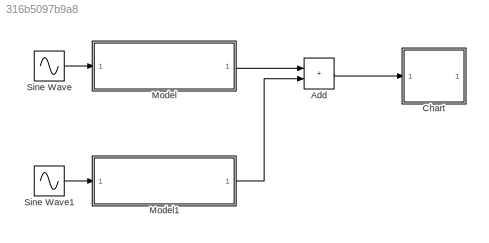
MODEL slx_316b5097b9a8
KIND model
CONFIG AbsTol = auto
CONFIG EnableMultiTasking = off
CONFIG FixedStep = auto
CONFIG MaxStep = auto
CONFIG MinStep = auto
CONFIG RelTol = 1e-3
CONFIG SampleTimeConstraint = Unconstrained
CONFIG SolverName = VariableStepAuto
CONFIG StartTime = 0.0
CONFIG StopTime = 10.0
BLOCK [Sum] Add
  IconShape = rectangular
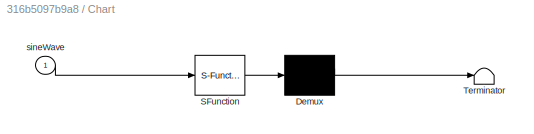
BLOCK [SubSystem] Chart
  ErrorFcn = Stateflow.Translate.translate
  PermitHierarchicalResolution = ExplicitOnly
  SFBlockType = Chart
  TreatAsAtomicUnit = on
BLOCK [Demux] Chart/ Demux 
  Outputs = 1
BLOCK [S-Function] Chart/ SFunction 
  EnableBusSupport = on
  FunctionName = sf_sfun
  PortCounts = [1 1]
  SFcnIsStateOwnerBlock = off
  SFunctionDeploymentMode = off
  Tag = Stateflow S-Function 3
BLOCK [Terminator] Chart/ Terminator 
BLOCK [Inport] Chart/sineWave
BLOCK [ModelReference] Model
  ModelNameDialog = submodel1.slx
  ModelReferenceVersion = 1.2
BLOCK [ModelReference] Model1
  ModelNameDialog = submodel2.slx
  ModelReferenceVersion = 1.2
BLOCK [Sin] Sine Wave
  Amplitude = 5
  Frequency = 2
  SampleTime = 0
BLOCK [Sin] Sine Wave1
  Frequency = 3
  SampleTime = 0
LINE Add:1 -> Chart:1
LINE Model1:1 -> Add:2
LINE Model:1 -> Add:1
LINE Sine Wave1:1 -> Model1:1
LINE Sine Wave:1 -> Model:1
CHART Chart states=2 transitions=3
  STATE_LABEL 'firstState\n'
  STATE_LABEL 'secondState\n'
CHART  states=0 transitions=0
